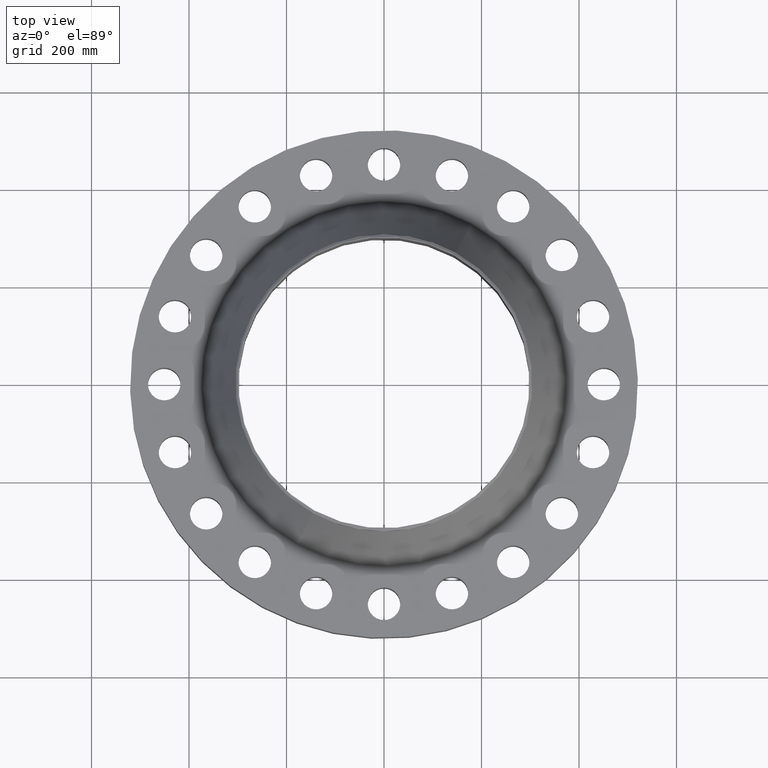
[diagram: clean part render]
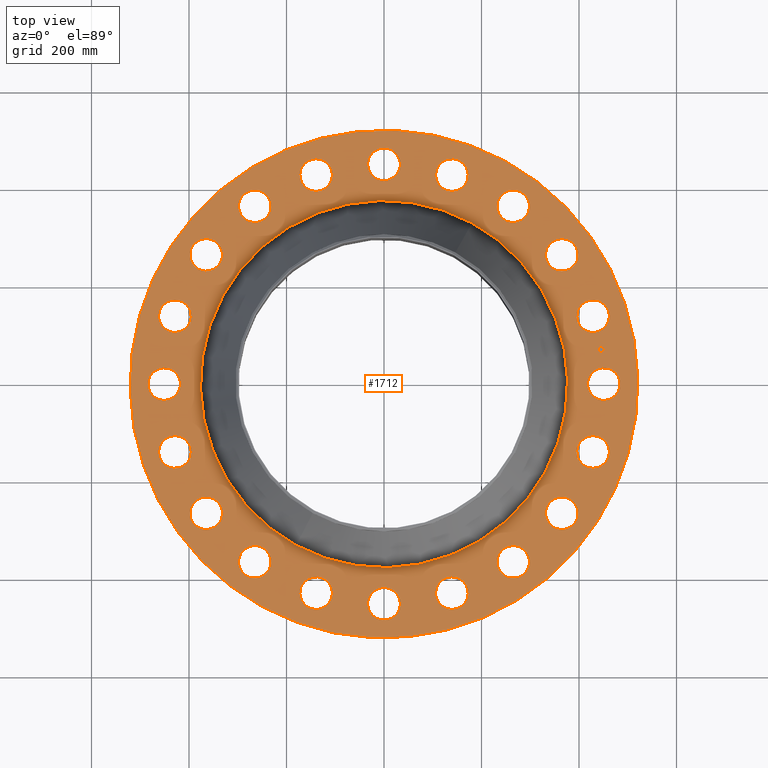
[diagram: same view with one face highlighted and labeled with its STEP entity id]
A machine part, top view. The second image highlights one B-rep face of the part: STEP entity #1712.
In plain terms, the highlighted planar face has unit normal (0, 0, -1).
Its self-contained STEP definition (entity closure, byte-faithful):
#65=AXIS2_PLACEMENT_3D('Circle Axis2P3D',#63,#64,$) ;
#82=AXIS2_PLACEMENT_3D('Circle Axis2P3D',#80,#81,$) ;
#115=AXIS2_PLACEMENT_3D('Circle Axis2P3D',#113,#114,$) ;
#139=AXIS2_PLACEMENT_3D('Circle Axis2P3D',#137,#138,$) ;
#156=AXIS2_PLACEMENT_3D('Circle Axis2P3D',#154,#155,$) ;
#191=AXIS2_PLACEMENT_3D('Circle Axis2P3D',#189,#190,$) ;
#805=AXIS2_PLACEMENT_3D('Circle Axis2P3D',#803,#804,$) ;
#817=AXIS2_PLACEMENT_3D('Circle Axis2P3D',#815,#816,$) ;
#848=AXIS2_PLACEMENT_3D('Circle Axis2P3D',#846,#847,$) ;
#860=AXIS2_PLACEMENT_3D('Circle Axis2P3D',#858,#859,$) ;
#891=AXIS2_PLACEMENT_3D('Circle Axis2P3D',#889,#890,$) ;
#903=AXIS2_PLACEMENT_3D('Circle Axis2P3D',#901,#902,$) ;
#934=AXIS2_PLACEMENT_3D('Circle Axis2P3D',#932,#933,$) ;
#946=AXIS2_PLACEMENT_3D('Circle Axis2P3D',#944,#945,$) ;
#977=AXIS2_PLACEMENT_3D('Circle Axis2P3D',#975,#976,$) ;
#989=AXIS2_PLACEMENT_3D('Circle Axis2P3D',#987,#988,$) ;
#1020=AXIS2_PLACEMENT_3D('Circle Axis2P3D',#1018,#1019,$) ;
#1032=AXIS2_PLACEMENT_3D('Circle Axis2P3D',#1030,#1031,$) ;
#1063=AXIS2_PLACEMENT_3D('Circle Axis2P3D',#1061,#1062,$) ;
#1075=AXIS2_PLACEMENT_3D('Circle Axis2P3D',#1073,#1074,$) ;
#1106=AXIS2_PLACEMENT_3D('Circle Axis2P3D',#1104,#1105,$) ;
#1118=AXIS2_PLACEMENT_3D('Circle Axis2P3D',#1116,#1117,$) ;
#1149=AXIS2_PLACEMENT_3D('Circle Axis2P3D',#1147,#1148,$) ;
#1161=AXIS2_PLACEMENT_3D('Circle Axis2P3D',#1159,#1160,$) ;
#1192=AXIS2_PLACEMENT_3D('Circle Axis2P3D',#1190,#1191,$) ;
#1204=AXIS2_PLACEMENT_3D('Circle Axis2P3D',#1202,#1203,$) ;
#1235=AXIS2_PLACEMENT_3D('Circle Axis2P3D',#1233,#1234,$) ;
#1247=AXIS2_PLACEMENT_3D('Circle Axis2P3D',#1245,#1246,$) ;
#1278=AXIS2_PLACEMENT_3D('Circle Axis2P3D',#1276,#1277,$) ;
#1290=AXIS2_PLACEMENT_3D('Circle Axis2P3D',#1288,#1289,$) ;
#1321=AXIS2_PLACEMENT_3D('Circle Axis2P3D',#1319,#1320,$) ;
#1333=AXIS2_PLACEMENT_3D('Circle Axis2P3D',#1331,#1332,$) ;
#1364=AXIS2_PLACEMENT_3D('Circle Axis2P3D',#1362,#1363,$) ;
#1376=AXIS2_PLACEMENT_3D('Circle Axis2P3D',#1374,#1375,$) ;
#1407=AXIS2_PLACEMENT_3D('Circle Axis2P3D',#1405,#1406,$) ;
#1419=AXIS2_PLACEMENT_3D('Circle Axis2P3D',#1417,#1418,$) ;
#1450=AXIS2_PLACEMENT_3D('Circle Axis2P3D',#1448,#1449,$) ;
#1462=AXIS2_PLACEMENT_3D('Circle Axis2P3D',#1460,#1461,$) ;
#1493=AXIS2_PLACEMENT_3D('Circle Axis2P3D',#1491,#1492,$) ;
#1505=AXIS2_PLACEMENT_3D('Circle Axis2P3D',#1503,#1504,$) ;
#1536=AXIS2_PLACEMENT_3D('Circle Axis2P3D',#1534,#1535,$) ;
#1548=AXIS2_PLACEMENT_3D('Circle Axis2P3D',#1546,#1547,$) ;
#1579=AXIS2_PLACEMENT_3D('Circle Axis2P3D',#1577,#1578,$) ;
#1591=AXIS2_PLACEMENT_3D('Circle Axis2P3D',#1589,#1590,$) ;
#1604=AXIS2_PLACEMENT_3D('Plane Axis2P3D',#1601,#1602,#1603) ;
#1696=AXIS2_PLACEMENT_3D('Circle Axis2P3D',#1694,#1695,$) ;
#1705=AXIS2_PLACEMENT_3D('Circle Axis2P3D',#1703,#1704,$) ;
#46=CARTESIAN_POINT('Vertex',(16.5959789312,0.630444583267,5.50000000002)) ;
#60=CARTESIAN_POINT('Vertex',(18.904021069,-0.630444583267,5.50000000002)) ;
#63=CARTESIAN_POINT('Axis2P3D Location',(17.7500000001,0.,5.50000000002)) ;
#80=CARTESIAN_POINT('Axis2P3D Location',(17.7500000001,0.,5.50000000002)) ;
#110=CARTESIAN_POINT('Vertex',(-9.82822354143,-17.9904425188,5.50000000002)) ;
#113=CARTESIAN_POINT('Axis2P3D Location',(0.,0.,5.50000000002)) ;
#117=CARTESIAN_POINT('Vertex',(9.82822354143,17.9904425188,5.50000000002)) ;
#137=CARTESIAN_POINT('Axis2P3D Location',(0.,0.,5.50000000002)) ;
#154=CARTESIAN_POINT('Axis2P3D Location',(0.,0.,5.50000000002)) ;
#158=CARTESIAN_POINT('Vertex',(7.10745939988,13.0101171641,5.50000000002)) ;
#160=CARTESIAN_POINT('Vertex',(-7.10745939988,-13.0101171641,5.50000000002)) ;
#189=CARTESIAN_POINT('Axis2P3D Location',(0.,0.,5.50000000002)) ;
#793=CARTESIAN_POINT('Vertex',(-15.978531997,4.52885109894,5.50000000002)) ;
#800=CARTESIAN_POINT('Vertex',(-17.7839743316,6.44125220141,5.50000000002)) ;
#803=CARTESIAN_POINT('Axis2P3D Location',(-16.8812531643,5.48505165018,5.50000000002)) ;
#815=CARTESIAN_POINT('Axis2P3D Location',(-16.8812531643,5.48505165018,5.50000000002)) ;
#836=CARTESIAN_POINT('Vertex',(13.796995022,-9.24483128123,5.50000000002)) ;
#843=CARTESIAN_POINT('Vertex',(14.9231082784,-11.6215451752,5.50000000002)) ;
#846=CARTESIAN_POINT('Axis2P3D Location',(14.3600516502,-10.4331882282,5.50000000002)) ;
#858=CARTESIAN_POINT('Axis2P3D Location',(14.3600516502,-10.4331882282,5.50000000002)) ;
#879=CARTESIAN_POINT('Vertex',(-13.796995022,9.24483128123,5.50000000002)) ;
#886=CARTESIAN_POINT('Vertex',(-14.9231082784,11.6215451752,5.50000000002)) ;
#889=CARTESIAN_POINT('Axis2P3D Location',(-14.3600516502,10.4331882282,5.50000000002)) ;
#901=CARTESIAN_POINT('Axis2P3D Location',(-14.3600516502,10.4331882282,5.50000000002)) ;
#922=CARTESIAN_POINT('Vertex',(10.264912045,-13.0558629652,5.50000000002)) ;
#929=CARTESIAN_POINT('Vertex',(10.6014644115,-15.6642403352,5.50000000002)) ;
#932=CARTESIAN_POINT('Axis2P3D Location',(10.4331882282,-14.3600516502,5.50000000002)) ;
#944=CARTESIAN_POINT('Axis2P3D Location',(10.4331882282,-14.3600516502,5.50000000002)) ;
#965=CARTESIAN_POINT('Vertex',(-10.264912045,13.0558629652,5.50000000002)) ;
#972=CARTESIAN_POINT('Vertex',(-10.6014644115,15.6642403352,5.50000000002)) ;
#975=CARTESIAN_POINT('Axis2P3D Location',(-10.4331882282,14.3600516502,5.50000000002)) ;
#987=CARTESIAN_POINT('Axis2P3D Location',(-10.4331882282,14.3600516502,5.50000000002)) ;
#1008=CARTESIAN_POINT('Vertex',(5.7280279571,-15.5888958166,5.50000000002)) ;
#1015=CARTESIAN_POINT('Vertex',(5.24207534325,-18.1736105121,5.50000000002)) ;
#1018=CARTESIAN_POINT('Axis2P3D Location',(5.48505165018,-16.8812531643,5.50000000002)) ;
#1030=CARTESIAN_POINT('Axis2P3D Location',(5.48505165018,-16.8812531643,5.50000000002)) ;
#1051=CARTESIAN_POINT('Vertex',(-5.7280279571,15.5888958166,5.50000000002)) ;
#1058=CARTESIAN_POINT('Vertex',(-5.24207534325,18.1736105121,5.50000000002)) ;
#1061=CARTESIAN_POINT('Axis2P3D Location',(-5.48505165018,16.8812531643,5.50000000002)) ;
#1073=CARTESIAN_POINT('Axis2P3D Location',(-5.48505165018,16.8812531643,5.50000000002)) ;
#1094=CARTESIAN_POINT('Vertex',(0.630444583267,-16.5959789312,5.50000000002)) ;
#1101=CARTESIAN_POINT('Vertex',(-0.630444583267,-18.904021069,5.50000000002)) ;
#1104=CARTESIAN_POINT('Axis2P3D Location',(2.79023589527E-015,-17.7500000001,5.50000000002)) ;
#1116=CARTESIAN_POINT('Axis2P3D Location',(2.79023589527E-015,-17.7500000001,5.50000000002)) ;
#1137=CARTESIAN_POINT('Vertex',(-0.630444583267,16.5959789312,5.50000000002)) ;
#1144=CARTESIAN_POINT('Vertex',(0.630444583267,18.904021069,5.50000000002)) ;
#1147=CARTESIAN_POINT('Axis2P3D Location',(-1.67878591761E-014,17.7500000001,5.50000000002)) ;
#1159=CARTESIAN_POINT('Axis2P3D Location',(-1.67878591761E-014,17.7500000001,5.50000000002)) ;
#1180=CARTESIAN_POINT('Vertex',(-4.52885109894,-15.978531997,5.50000000002)) ;
#1187=CARTESIAN_POINT('Vertex',(-6.44125220141,-17.7839743316,5.50000000002)) ;
#1190=CARTESIAN_POINT('Axis2P3D Location',(-5.48505165018,-16.8812531643,5.50000000002)) ;
#1202=CARTESIAN_POINT('Axis2P3D Location',(-5.48505165018,-16.8812531643,5.50000000002)) ;
#1223=CARTESIAN_POINT('Vertex',(4.52885109894,15.978531997,5.50000000002)) ;
#1230=CARTESIAN_POINT('Vertex',(6.44125220141,17.7839743316,5.50000000002)) ;
#1233=CARTESIAN_POINT('Axis2P3D Location',(5.48505165018,16.8812531643,5.50000000002)) ;
#1245=CARTESIAN_POINT('Axis2P3D Location',(5.48505165018,16.8812531643,5.50000000002)) ;
#1266=CARTESIAN_POINT('Vertex',(-9.24483128123,-13.796995022,5.50000000002)) ;
#1273=CARTESIAN_POINT('Vertex',(-11.6215451752,-14.9231082784,5.50000000002)) ;
#1276=CARTESIAN_POINT('Axis2P3D Location',(-10.4331882282,-14.3600516502,5.50000000002)) ;
#1288=CARTESIAN_POINT('Axis2P3D Location',(-10.4331882282,-14.3600516502,5.50000000002)) ;
#1309=CARTESIAN_POINT('Vertex',(9.24483128123,13.796995022,5.50000000002)) ;
#1316=CARTESIAN_POINT('Vertex',(11.6215451752,14.9231082784,5.50000000002)) ;
#1319=CARTESIAN_POINT('Axis2P3D Location',(10.4331882282,14.3600516502,5.50000000002)) ;
#1331=CARTESIAN_POINT('Axis2P3D Location',(10.4331882282,14.3600516502,5.50000000002)) ;
#1352=CARTESIAN_POINT('Vertex',(-13.0558629652,-10.264912045,5.50000000002)) ;
#1359=CARTESIAN_POINT('Vertex',(-15.6642403352,-10.6014644115,5.50000000002)) ;
#1362=CARTESIAN_POINT('Axis2P3D Location',(-14.3600516502,-10.4331882282,5.50000000002)) ;
#1374=CARTESIAN_POINT('Axis2P3D Location',(-14.3600516502,-10.4331882282,5.50000000002)) ;
#1395=CARTESIAN_POINT('Vertex',(13.0558629652,10.264912045,5.50000000002)) ;
#1402=CARTESIAN_POINT('Vertex',(15.6642403352,10.6014644115,5.50000000002)) ;
#1405=CARTESIAN_POINT('Axis2P3D Location',(14.3600516502,10.4331882282,5.50000000002)) ;
#1417=CARTESIAN_POINT('Axis2P3D Location',(14.3600516502,10.4331882282,5.50000000002)) ;
#1438=CARTESIAN_POINT('Vertex',(-15.5888958166,-5.7280279571,5.50000000002)) ;
#1445=CARTESIAN_POINT('Vertex',(-18.1736105121,-5.24207534325,5.50000000002)) ;
#1448=CARTESIAN_POINT('Axis2P3D Location',(-16.8812531643,-5.48505165018,5.50000000002)) ;
#1460=CARTESIAN_POINT('Axis2P3D Location',(-16.8812531643,-5.48505165018,5.50000000002)) ;
#1481=CARTESIAN_POINT('Vertex',(15.5888958166,5.7280279571,5.50000000002)) ;
#1488=CARTESIAN_POINT('Vertex',(18.1736105121,5.24207534325,5.50000000002)) ;
#1491=CARTESIAN_POINT('Axis2P3D Location',(16.8812531643,5.48505165018,5.50000000002)) ;
#1503=CARTESIAN_POINT('Axis2P3D Location',(16.8812531643,5.48505165018,5.50000000002)) ;
#1524=CARTESIAN_POINT('Vertex',(-16.5959789312,-0.630444583267,5.50000000002)) ;
#1531=CARTESIAN_POINT('Vertex',(-18.904021069,0.630444583267,5.50000000002)) ;
#1534=CARTESIAN_POINT('Axis2P3D Location',(-17.7500000001,-1.00563315434E-014,5.50000000002)) ;
#1546=CARTESIAN_POINT('Axis2P3D Location',(-17.7500000001,-1.00563315434E-014,5.50000000002)) ;
#1567=CARTESIAN_POINT('Vertex',(15.978531997,-4.52885109894,5.50000000002)) ;
#1574=CARTESIAN_POINT('Vertex',(17.7839743316,-6.44125220141,5.50000000002)) ;
#1577=CARTESIAN_POINT('Axis2P3D Location',(16.8812531643,-5.48505165018,5.50000000002)) ;
#1589=CARTESIAN_POINT('Axis2P3D Location',(16.8812531643,-5.48505165018,5.50000000002)) ;
#1601=CARTESIAN_POINT('Axis2P3D Location',(0.,20.5000000001,5.50000000002)) ;
#1694=CARTESIAN_POINT('Axis2P3D Location',(17.5314680456,2.77671175448,5.50000000002)) ;
#1698=CARTESIAN_POINT('Vertex',(17.4927505155,3.02116461877,5.50000000002)) ;
#1700=CARTESIAN_POINT('Vertex',(17.5701855757,2.53225889018,5.50000000002)) ;
#1703=CARTESIAN_POINT('Axis2P3D Location',(17.5314680456,2.77671175448,5.50000000002)) ;
#64=DIRECTION('Axis2P3D Direction',(0.,-0.,-0.0393700787402)) ;
#81=DIRECTION('Axis2P3D Direction',(0.,-0.,-0.0393700787402)) ;
#114=DIRECTION('Axis2P3D Direction',(0.,0.,-0.0393700787402)) ;
#138=DIRECTION('Axis2P3D Direction',(0.,0.,-0.0393700787402)) ;
#155=DIRECTION('Axis2P3D Direction',(0.,0.,-0.0393700787402)) ;
#190=DIRECTION('Axis2P3D Direction',(0.,0.,-0.0393700787402)) ;
#804=DIRECTION('Axis2P3D Direction',(0.,0.,-0.0393700787402)) ;
#816=DIRECTION('Axis2P3D Direction',(0.,0.,-0.0393700787402)) ;
#847=DIRECTION('Axis2P3D Direction',(0.,-0.,-0.0393700787402)) ;
#859=DIRECTION('Axis2P3D Direction',(0.,-0.,-0.0393700787402)) ;
#890=DIRECTION('Axis2P3D Direction',(0.,0.,-0.0393700787402)) ;
#902=DIRECTION('Axis2P3D Direction',(0.,0.,-0.0393700787402)) ;
#933=DIRECTION('Axis2P3D Direction',(0.,-0.,-0.0393700787402)) ;
#945=DIRECTION('Axis2P3D Direction',(0.,-0.,-0.0393700787402)) ;
#976=DIRECTION('Axis2P3D Direction',(0.,0.,-0.0393700787402)) ;
#988=DIRECTION('Axis2P3D Direction',(0.,0.,-0.0393700787402)) ;
#1019=DIRECTION('Axis2P3D Direction',(0.,-0.,-0.0393700787402)) ;
#1031=DIRECTION('Axis2P3D Direction',(0.,-0.,-0.0393700787402)) ;
#1062=DIRECTION('Axis2P3D Direction',(0.,0.,-0.0393700787402)) ;
#1074=DIRECTION('Axis2P3D Direction',(0.,0.,-0.0393700787402)) ;
#1105=DIRECTION('Axis2P3D Direction',(0.,-0.,-0.0393700787402)) ;
#1117=DIRECTION('Axis2P3D Direction',(0.,-0.,-0.0393700787402)) ;
#1148=DIRECTION('Axis2P3D Direction',(0.,0.,-0.0393700787402)) ;
#1160=DIRECTION('Axis2P3D Direction',(0.,0.,-0.0393700787402)) ;
#1191=DIRECTION('Axis2P3D Direction',(-0.,0.,-0.0393700787402)) ;
#1203=DIRECTION('Axis2P3D Direction',(-0.,0.,-0.0393700787402)) ;
#1234=DIRECTION('Axis2P3D Direction',(0.,0.,-0.0393700787402)) ;
#1246=DIRECTION('Axis2P3D Direction',(0.,0.,-0.0393700787402)) ;
#1277=DIRECTION('Axis2P3D Direction',(-0.,0.,-0.0393700787402)) ;
#1289=DIRECTION('Axis2P3D Direction',(-0.,0.,-0.0393700787402)) ;
#1320=DIRECTION('Axis2P3D Direction',(0.,0.,-0.0393700787402)) ;
#1332=DIRECTION('Axis2P3D Direction',(0.,0.,-0.0393700787402)) ;
#1363=DIRECTION('Axis2P3D Direction',(-0.,0.,-0.0393700787402)) ;
#1375=DIRECTION('Axis2P3D Direction',(-0.,0.,-0.0393700787402)) ;
#1406=DIRECTION('Axis2P3D Direction',(0.,0.,-0.0393700787402)) ;
#1418=DIRECTION('Axis2P3D Direction',(0.,0.,-0.0393700787402)) ;
#1449=DIRECTION('Axis2P3D Direction',(-0.,0.,-0.0393700787402)) ;
#1461=DIRECTION('Axis2P3D Direction',(-0.,0.,-0.0393700787402)) ;
#1492=DIRECTION('Axis2P3D Direction',(0.,0.,-0.0393700787402)) ;
#1504=DIRECTION('Axis2P3D Direction',(0.,0.,-0.0393700787402)) ;
#1535=DIRECTION('Axis2P3D Direction',(-0.,0.,-0.0393700787402)) ;
#1547=DIRECTION('Axis2P3D Direction',(-0.,0.,-0.0393700787402)) ;
#1578=DIRECTION('Axis2P3D Direction',(0.,-0.,-0.0393700787402)) ;
#1590=DIRECTION('Axis2P3D Direction',(0.,-0.,-0.0393700787402)) ;
#1602=DIRECTION('Axis2P3D Direction',(0.,0.,-0.0393700787402)) ;
#1603=DIRECTION('Axis2P3D XDirection',(0.0393700787402,0.,0.)) ;
#1695=DIRECTION('Axis2P3D Direction',(0.,0.,-0.0393700787402)) ;
#1704=DIRECTION('Axis2P3D Direction',(0.,0.,-0.0393700787402)) ;
#1607=ORIENTED_EDGE('',*,*,#141,.F.) ;
#1608=ORIENTED_EDGE('',*,*,#119,.F.) ;
#1611=ORIENTED_EDGE('',*,*,#67,.T.) ;
#1612=ORIENTED_EDGE('',*,*,#84,.T.) ;
#1615=ORIENTED_EDGE('',*,*,#193,.T.) ;
#1616=ORIENTED_EDGE('',*,*,#162,.T.) ;
#1619=ORIENTED_EDGE('',*,*,#1593,.T.) ;
#1620=ORIENTED_EDGE('',*,*,#1581,.T.) ;
#1623=ORIENTED_EDGE('',*,*,#862,.T.) ;
#1624=ORIENTED_EDGE('',*,*,#850,.T.) ;
#1627=ORIENTED_EDGE('',*,*,#948,.T.) ;
#1628=ORIENTED_EDGE('',*,*,#936,.T.) ;
#1631=ORIENTED_EDGE('',*,*,#1034,.T.) ;
#1632=ORIENTED_EDGE('',*,*,#1022,.T.) ;
#1635=ORIENTED_EDGE('',*,*,#1120,.T.) ;
#1636=ORIENTED_EDGE('',*,*,#1108,.T.) ;
#1639=ORIENTED_EDGE('',*,*,#1206,.T.) ;
#1640=ORIENTED_EDGE('',*,*,#1194,.T.) ;
#1643=ORIENTED_EDGE('',*,*,#1292,.T.) ;
#1644=ORIENTED_EDGE('',*,*,#1280,.T.) ;
#1647=ORIENTED_EDGE('',*,*,#1378,.T.) ;
#1648=ORIENTED_EDGE('',*,*,#1366,.T.) ;
#1651=ORIENTED_EDGE('',*,*,#1464,.T.) ;
#1652=ORIENTED_EDGE('',*,*,#1452,.T.) ;
#1655=ORIENTED_EDGE('',*,*,#1550,.T.) ;
#1656=ORIENTED_EDGE('',*,*,#1538,.T.) ;
#1659=ORIENTED_EDGE('',*,*,#819,.T.) ;
#1660=ORIENTED_EDGE('',*,*,#807,.T.) ;
#1663=ORIENTED_EDGE('',*,*,#905,.T.) ;
#1664=ORIENTED_EDGE('',*,*,#893,.T.) ;
#1667=ORIENTED_EDGE('',*,*,#991,.T.) ;
#1668=ORIENTED_EDGE('',*,*,#979,.T.) ;
#1671=ORIENTED_EDGE('',*,*,#1077,.T.) ;
#1672=ORIENTED_EDGE('',*,*,#1065,.T.) ;
#1675=ORIENTED_EDGE('',*,*,#1163,.T.) ;
#1676=ORIENTED_EDGE('',*,*,#1151,.T.) ;
#1679=ORIENTED_EDGE('',*,*,#1249,.T.) ;
#1680=ORIENTED_EDGE('',*,*,#1237,.T.) ;
#1683=ORIENTED_EDGE('',*,*,#1335,.T.) ;
#1684=ORIENTED_EDGE('',*,*,#1323,.T.) ;
#1687=ORIENTED_EDGE('',*,*,#1421,.T.) ;
#1688=ORIENTED_EDGE('',*,*,#1409,.T.) ;
#1691=ORIENTED_EDGE('',*,*,#1507,.T.) ;
#1692=ORIENTED_EDGE('',*,*,#1495,.T.) ;
#1709=ORIENTED_EDGE('',*,*,#1702,.T.) ;
#1710=ORIENTED_EDGE('',*,*,#1707,.T.) ;
#1613=FACE_BOUND('',#1610,.T.) ;
#1617=FACE_BOUND('',#1614,.T.) ;
#1621=FACE_BOUND('',#1618,.T.) ;
#1625=FACE_BOUND('',#1622,.T.) ;
#1629=FACE_BOUND('',#1626,.T.) ;
#1633=FACE_BOUND('',#1630,.T.) ;
#1637=FACE_BOUND('',#1634,.T.) ;
#1641=FACE_BOUND('',#1638,.T.) ;
#1645=FACE_BOUND('',#1642,.T.) ;
#1649=FACE_BOUND('',#1646,.T.) ;
#1653=FACE_BOUND('',#1650,.T.) ;
#1657=FACE_BOUND('',#1654,.T.) ;
#1661=FACE_BOUND('',#1658,.T.) ;
#1665=FACE_BOUND('',#1662,.T.) ;
#1669=FACE_BOUND('',#1666,.T.) ;
#1673=FACE_BOUND('',#1670,.T.) ;
#1677=FACE_BOUND('',#1674,.T.) ;
#1681=FACE_BOUND('',#1678,.T.) ;
#1685=FACE_BOUND('',#1682,.T.) ;
#1689=FACE_BOUND('',#1686,.T.) ;
#1693=FACE_BOUND('',#1690,.T.) ;
#1711=FACE_BOUND('',#1708,.T.) ;
#1712=ADVANCED_FACE('PartBody',(#1609,#1613,#1617,#1621,#1625,#1629,#1633,#1637,#1641,#1645,#1649,#1653,#1657,#1661,#1665,#1669,#1673,#1677,#1681,#1685,#1689,#1693,#1711),#1605,.F.) ;
#66=CIRCLE('generated circle',#65,1.31500000001) ;
#83=CIRCLE('generated circle',#82,1.31500000001) ;
#116=CIRCLE('generated circle',#115,20.5000000001) ;
#140=CIRCLE('generated circle',#139,20.5000000001) ;
#157=CIRCLE('generated circle',#156,14.8249495022) ;
#192=CIRCLE('generated circle',#191,14.8249495022) ;
#806=CIRCLE('generated circle',#805,1.31500000001) ;
#818=CIRCLE('generated circle',#817,1.31500000001) ;
#849=CIRCLE('generated circle',#848,1.31500000001) ;
#861=CIRCLE('generated circle',#860,1.31500000001) ;
#892=CIRCLE('generated circle',#891,1.31500000001) ;
#904=CIRCLE('generated circle',#903,1.31500000001) ;
#935=CIRCLE('generated circle',#934,1.31500000001) ;
#947=CIRCLE('generated circle',#946,1.31500000001) ;
#978=CIRCLE('generated circle',#977,1.31500000001) ;
#990=CIRCLE('generated circle',#989,1.31500000001) ;
#1021=CIRCLE('generated circle',#1020,1.31500000001) ;
#1033=CIRCLE('generated circle',#1032,1.31500000001) ;
#1064=CIRCLE('generated circle',#1063,1.31500000001) ;
#1076=CIRCLE('generated circle',#1075,1.31500000001) ;
#1107=CIRCLE('generated circle',#1106,1.31500000001) ;
#1119=CIRCLE('generated circle',#1118,1.31500000001) ;
#1150=CIRCLE('generated circle',#1149,1.31500000001) ;
#1162=CIRCLE('generated circle',#1161,1.31500000001) ;
#1193=CIRCLE('generated circle',#1192,1.31500000001) ;
#1205=CIRCLE('generated circle',#1204,1.31500000001) ;
#1236=CIRCLE('generated circle',#1235,1.31500000001) ;
#1248=CIRCLE('generated circle',#1247,1.31500000001) ;
#1279=CIRCLE('generated circle',#1278,1.31500000001) ;
#1291=CIRCLE('generated circle',#1290,1.31500000001) ;
#1322=CIRCLE('generated circle',#1321,1.31500000001) ;
#1334=CIRCLE('generated circle',#1333,1.31500000001) ;
#1365=CIRCLE('generated circle',#1364,1.31500000001) ;
#1377=CIRCLE('generated circle',#1376,1.31500000001) ;
#1408=CIRCLE('generated circle',#1407,1.31500000001) ;
#1420=CIRCLE('generated circle',#1419,1.31500000001) ;
#1451=CIRCLE('generated circle',#1450,1.31500000001) ;
#1463=CIRCLE('generated circle',#1462,1.31500000001) ;
#1494=CIRCLE('generated circle',#1493,1.31500000001) ;
#1506=CIRCLE('generated circle',#1505,1.31500000001) ;
#1537=CIRCLE('generated circle',#1536,1.31500000001) ;
#1549=CIRCLE('generated circle',#1548,1.31500000001) ;
#1580=CIRCLE('generated circle',#1579,1.31500000001) ;
#1592=CIRCLE('generated circle',#1591,1.31500000001) ;
#1697=CIRCLE('generated circle',#1696,0.247500000001) ;
#1706=CIRCLE('generated circle',#1705,0.247500000001) ;
#67=EDGE_CURVE('',#47,#61,#66,.T.) ;
#84=EDGE_CURVE('',#61,#47,#83,.T.) ;
#119=EDGE_CURVE('',#111,#118,#116,.T.) ;
#141=EDGE_CURVE('',#118,#111,#140,.T.) ;
#162=EDGE_CURVE('',#159,#161,#157,.T.) ;
#193=EDGE_CURVE('',#161,#159,#192,.T.) ;
#807=EDGE_CURVE('',#794,#801,#806,.T.) ;
#819=EDGE_CURVE('',#801,#794,#818,.T.) ;
#850=EDGE_CURVE('',#837,#844,#849,.T.) ;
#862=EDGE_CURVE('',#844,#837,#861,.T.) ;
#893=EDGE_CURVE('',#880,#887,#892,.T.) ;
#905=EDGE_CURVE('',#887,#880,#904,.T.) ;
#936=EDGE_CURVE('',#923,#930,#935,.T.) ;
#948=EDGE_CURVE('',#930,#923,#947,.T.) ;
#979=EDGE_CURVE('',#966,#973,#978,.T.) ;
#991=EDGE_CURVE('',#973,#966,#990,.T.) ;
#1022=EDGE_CURVE('',#1009,#1016,#1021,.T.) ;
#1034=EDGE_CURVE('',#1016,#1009,#1033,.T.) ;
#1065=EDGE_CURVE('',#1052,#1059,#1064,.T.) ;
#1077=EDGE_CURVE('',#1059,#1052,#1076,.T.) ;
#1108=EDGE_CURVE('',#1095,#1102,#1107,.T.) ;
#1120=EDGE_CURVE('',#1102,#1095,#1119,.T.) ;
#1151=EDGE_CURVE('',#1138,#1145,#1150,.T.) ;
#1163=EDGE_CURVE('',#1145,#1138,#1162,.T.) ;
#1194=EDGE_CURVE('',#1181,#1188,#1193,.T.) ;
#1206=EDGE_CURVE('',#1188,#1181,#1205,.T.) ;
#1237=EDGE_CURVE('',#1224,#1231,#1236,.T.) ;
#1249=EDGE_CURVE('',#1231,#1224,#1248,.T.) ;
#1280=EDGE_CURVE('',#1267,#1274,#1279,.T.) ;
#1292=EDGE_CURVE('',#1274,#1267,#1291,.T.) ;
#1323=EDGE_CURVE('',#1310,#1317,#1322,.T.) ;
#1335=EDGE_CURVE('',#1317,#1310,#1334,.T.) ;
#1366=EDGE_CURVE('',#1353,#1360,#1365,.T.) ;
#1378=EDGE_CURVE('',#1360,#1353,#1377,.T.) ;
#1409=EDGE_CURVE('',#1396,#1403,#1408,.T.) ;
#1421=EDGE_CURVE('',#1403,#1396,#1420,.T.) ;
#1452=EDGE_CURVE('',#1439,#1446,#1451,.T.) ;
#1464=EDGE_CURVE('',#1446,#1439,#1463,.T.) ;
#1495=EDGE_CURVE('',#1482,#1489,#1494,.T.) ;
#1507=EDGE_CURVE('',#1489,#1482,#1506,.T.) ;
#1538=EDGE_CURVE('',#1525,#1532,#1537,.T.) ;
#1550=EDGE_CURVE('',#1532,#1525,#1549,.T.) ;
#1581=EDGE_CURVE('',#1568,#1575,#1580,.T.) ;
#1593=EDGE_CURVE('',#1575,#1568,#1592,.T.) ;
#1702=EDGE_CURVE('',#1699,#1701,#1697,.T.) ;
#1707=EDGE_CURVE('',#1701,#1699,#1706,.T.) ;
#1606=EDGE_LOOP('',(#1607,#1608)) ;
#1610=EDGE_LOOP('',(#1611,#1612)) ;
#1614=EDGE_LOOP('',(#1615,#1616)) ;
#1618=EDGE_LOOP('',(#1619,#1620)) ;
#1622=EDGE_LOOP('',(#1623,#1624)) ;
#1626=EDGE_LOOP('',(#1627,#1628)) ;
#1630=EDGE_LOOP('',(#1631,#1632)) ;
#1634=EDGE_LOOP('',(#1635,#1636)) ;
#1638=EDGE_LOOP('',(#1639,#1640)) ;
#1642=EDGE_LOOP('',(#1643,#1644)) ;
#1646=EDGE_LOOP('',(#1647,#1648)) ;
#1650=EDGE_LOOP('',(#1651,#1652)) ;
#1654=EDGE_LOOP('',(#1655,#1656)) ;
#1658=EDGE_LOOP('',(#1659,#1660)) ;
#1662=EDGE_LOOP('',(#1663,#1664)) ;
#1666=EDGE_LOOP('',(#1667,#1668)) ;
#1670=EDGE_LOOP('',(#1671,#1672)) ;
#1674=EDGE_LOOP('',(#1675,#1676)) ;
#1678=EDGE_LOOP('',(#1679,#1680)) ;
#1682=EDGE_LOOP('',(#1683,#1684)) ;
#1686=EDGE_LOOP('',(#1687,#1688)) ;
#1690=EDGE_LOOP('',(#1691,#1692)) ;
#1708=EDGE_LOOP('',(#1709,#1710)) ;
#1609=FACE_OUTER_BOUND('',#1606,.T.) ;
#1605=PLANE('',#1604) ;
#47=VERTEX_POINT('',#46) ;
#61=VERTEX_POINT('',#60) ;
#111=VERTEX_POINT('',#110) ;
#118=VERTEX_POINT('',#117) ;
#159=VERTEX_POINT('',#158) ;
#161=VERTEX_POINT('',#160) ;
#794=VERTEX_POINT('',#793) ;
#801=VERTEX_POINT('',#800) ;
#837=VERTEX_POINT('',#836) ;
#844=VERTEX_POINT('',#843) ;
#880=VERTEX_POINT('',#879) ;
#887=VERTEX_POINT('',#886) ;
#923=VERTEX_POINT('',#922) ;
#930=VERTEX_POINT('',#929) ;
#966=VERTEX_POINT('',#965) ;
#973=VERTEX_POINT('',#972) ;
#1009=VERTEX_POINT('',#1008) ;
#1016=VERTEX_POINT('',#1015) ;
#1052=VERTEX_POINT('',#1051) ;
#1059=VERTEX_POINT('',#1058) ;
#1095=VERTEX_POINT('',#1094) ;
#1102=VERTEX_POINT('',#1101) ;
#1138=VERTEX_POINT('',#1137) ;
#1145=VERTEX_POINT('',#1144) ;
#1181=VERTEX_POINT('',#1180) ;
#1188=VERTEX_POINT('',#1187) ;
#1224=VERTEX_POINT('',#1223) ;
#1231=VERTEX_POINT('',#1230) ;
#1267=VERTEX_POINT('',#1266) ;
#1274=VERTEX_POINT('',#1273) ;
#1310=VERTEX_POINT('',#1309) ;
#1317=VERTEX_POINT('',#1316) ;
#1353=VERTEX_POINT('',#1352) ;
#1360=VERTEX_POINT('',#1359) ;
#1396=VERTEX_POINT('',#1395) ;
#1403=VERTEX_POINT('',#1402) ;
#1439=VERTEX_POINT('',#1438) ;
#1446=VERTEX_POINT('',#1445) ;
#1482=VERTEX_POINT('',#1481) ;
#1489=VERTEX_POINT('',#1488) ;
#1525=VERTEX_POINT('',#1524) ;
#1532=VERTEX_POINT('',#1531) ;
#1568=VERTEX_POINT('',#1567) ;
#1575=VERTEX_POINT('',#1574) ;
#1699=VERTEX_POINT('',#1698) ;
#1701=VERTEX_POINT('',#1700) ;